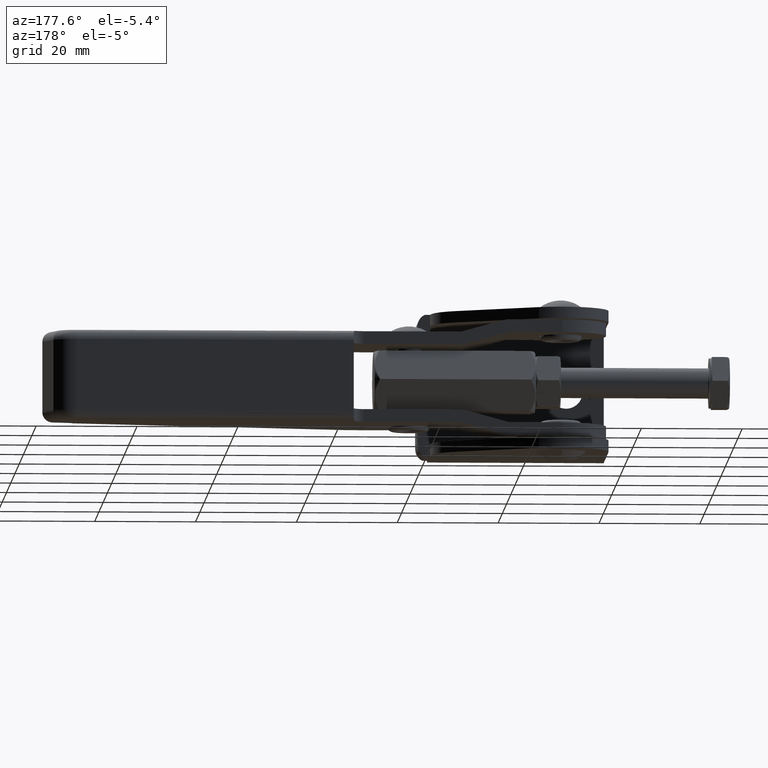
[diagram: clean part render]
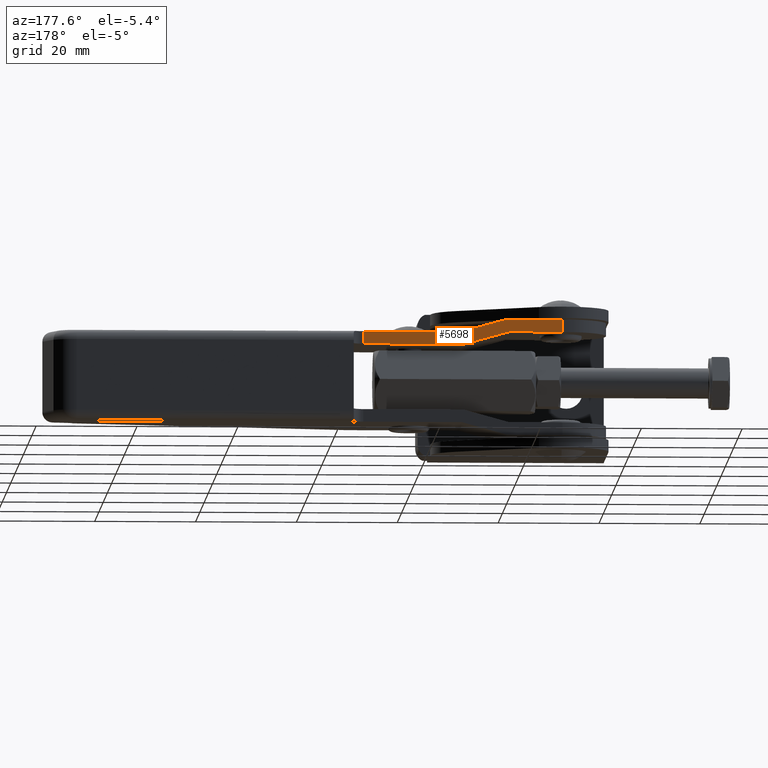
[diagram: same view with one face highlighted and labeled with its STEP entity id]
A machine part, auxiliary view. The second image highlights one B-rep face of the part: STEP entity #5698.
In plain terms, the highlighted planar face has unit normal (0, -1, 0).
Its self-contained STEP definition (entity closure, byte-faithful):
#373 = VERTEX_POINT ( 'NONE', #2114 ) ;
#421 = VECTOR ( 'NONE', #3467, 1000.000000000000000 ) ;
#581 = FACE_OUTER_BOUND ( 'NONE', #6100, .T. ) ;
#808 = VECTOR ( 'NONE', #6812, 1000.000000000000100 ) ;
#813 = CARTESIAN_POINT ( 'NONE',  ( -8.000000000000000000, 34.00000000000000000, 9.000000000000005300 ) ) ;
#966 = CARTESIAN_POINT ( 'NONE',  ( 11.65922915400000000, 34.00000000322666700, 6.500000000000004400 ) ) ;
#1069 = VECTOR ( 'NONE', #2229, 1000.000000000000000 ) ;
#1103 = VERTEX_POINT ( 'NONE', #2317 ) ;
#1141 = VECTOR ( 'NONE', #4653, 1000.000000000000000 ) ;
#1251 = PLANE ( 'NONE',  #4116 ) ;
#1756 = EDGE_CURVE ( 'NONE', #5498, #1103, #4007, .T. ) ;
#1790 = LINE ( 'NONE', #5171, #4555 ) ;
#1796 = DIRECTION ( 'NONE',  ( 0.0000000000000000000, 0.0000000000000000000, -1.000000000000000000 ) ) ;
#1891 = CARTESIAN_POINT ( 'NONE',  ( 7.159229154000003700, 34.00000000000000000, 7.750000000000004400 ) ) ;
#2077 = CARTESIAN_POINT ( 'NONE',  ( 31.49999999961530900, 34.00000000024999700, 9.000000000000005300 ) ) ;
#2114 = CARTESIAN_POINT ( 'NONE',  ( 31.49999999961530900, 34.00000000241999500, 6.500000000000004400 ) ) ;
#2229 = DIRECTION ( 'NONE',  ( 1.000000000000000000, 0.0000000000000000000, 0.0000000000000000000 ) ) ;
#2317 = CARTESIAN_POINT ( 'NONE',  ( 2.659229153999999300, 34.00000000000000000, 9.000000000000005300 ) ) ;
#2483 = ORIENTED_EDGE ( 'NONE', *, *, #6084, .F. ) ;
#2511 = CARTESIAN_POINT ( 'NONE',  ( -8.000000000000000000, 34.00000000000000000, 11.50000000000000400 ) ) ;
#2611 = LINE ( 'NONE', #5742, #1141 ) ;
#2667 = CARTESIAN_POINT ( 'NONE',  ( 2.999999999999999100, 33.99999999999998600, 11.50000000000000400 ) ) ;
#2708 = EDGE_CURVE ( 'NONE', #2746, #4954, #3556, .T. ) ;
#2746 = VERTEX_POINT ( 'NONE', #3775 ) ;
#3329 = LINE ( 'NONE', #6177, #421 ) ;
#3467 = DIRECTION ( 'NONE',  ( -1.000000000000000000, -0.0000000000000000000, -0.0000000000000000000 ) ) ;
#3535 = DIRECTION ( 'NONE',  ( -1.000000000000000000, -0.0000000000000000000, -0.0000000000000000000 ) ) ;
#3556 = LINE ( 'NONE', #2667, #4841 ) ;
#3602 = ORIENTED_EDGE ( 'NONE', *, *, #7060, .F. ) ;
#3716 = LINE ( 'NONE', #1891, #808 ) ;
#3775 = CARTESIAN_POINT ( 'NONE',  ( 11.99999999999999600, 34.00000000024999700, 9.000000000000005300 ) ) ;
#3855 = CARTESIAN_POINT ( 'NONE',  ( 11.75000000000000000, 34.00000000000000000, 9.000000000000005300 ) ) ;
#4007 = LINE ( 'NONE', #3855, #1069 ) ;
#4104 = DIRECTION ( 'NONE',  ( 0.0000000000000000000, 0.0000000000000000000, -1.000000000000000000 ) ) ;
#4114 = CARTESIAN_POINT ( 'NONE',  ( 2.999999999999988900, 33.99999999999999300, 11.50000000000000500 ) ) ;
#4116 = AXIS2_PLACEMENT_3D ( 'NONE', #6167, #5098, #1796 ) ;
#4555 = VECTOR ( 'NONE', #3535, 1000.000000000000000 ) ;
#4651 = ORIENTED_EDGE ( 'NONE', *, *, #5104, .F. ) ;
#4653 = DIRECTION ( 'NONE',  ( 0.0000000000000000000, 0.0000000000000000000, 1.000000000000000000 ) ) ;
#4778 = CARTESIAN_POINT ( 'NONE',  ( 52.24644730450000900, 34.00000000050000200, 9.000000000000005300 ) ) ;
#4841 = VECTOR ( 'NONE', #5895, 1000.000000000000100 ) ;
#4892 = CARTESIAN_POINT ( 'NONE',  ( -8.000000000000000000, 34.00000000000000000, 9.000000000000005300 ) ) ;
#4931 = EDGE_CURVE ( 'NONE', #373, #6875, #1790, .T. ) ;
#4954 = VERTEX_POINT ( 'NONE', #4114 ) ;
#4962 = VECTOR ( 'NONE', #6981, 1000.000000000000000 ) ;
#5098 = DIRECTION ( 'NONE',  ( 0.0000000000000000000, -1.000000000000000000, 0.0000000000000000000 ) ) ;
#5104 = EDGE_CURVE ( 'NONE', #6886, #2746, #6424, .T. ) ;
#5151 = EDGE_CURVE ( 'NONE', #4954, #5299, #3329, .T. ) ;
#5171 = CARTESIAN_POINT ( 'NONE',  ( 51.82719602000000900, 34.00000000483999700, 6.500000000000004400 ) ) ;
#5299 = VERTEX_POINT ( 'NONE', #2511 ) ;
#5462 = ORIENTED_EDGE ( 'NONE', *, *, #4931, .T. ) ;
#5498 = VERTEX_POINT ( 'NONE', #4892 ) ;
#5678 = ORIENTED_EDGE ( 'NONE', *, *, #1756, .F. ) ;
#5698 = ADVANCED_FACE ( 'NONE', ( #581 ), #1251, .F. ) ;
#5742 = CARTESIAN_POINT ( 'NONE',  ( 31.49999999923061700, 34.00000000000000000, 7.750000000000004400 ) ) ;
#5811 = LINE ( 'NONE', #813, #6759 ) ;
#5895 = DIRECTION ( 'NONE',  ( -0.9635179096299406600, -0.0000000000000000000, 0.2676438637860945000 ) ) ;
#6084 = EDGE_CURVE ( 'NONE', #5299, #5498, #5811, .T. ) ;
#6100 = EDGE_LOOP ( 'NONE', ( #3602, #5462, #6376, #5678, #2483, #6841, #7090, #4651 ) ) ;
#6167 = CARTESIAN_POINT ( 'NONE',  ( -8.000000000000000000, 34.00000000000000000, 11.50000000000000400 ) ) ;
#6177 = CARTESIAN_POINT ( 'NONE',  ( 11.75000000000000000, 34.00000000000000000, 11.50000000000000400 ) ) ;
#6376 = ORIENTED_EDGE ( 'NONE', *, *, #6701, .T. ) ;
#6424 = LINE ( 'NONE', #4778, #4962 ) ;
#6701 = EDGE_CURVE ( 'NONE', #6875, #1103, #3716, .T. ) ;
#6759 = VECTOR ( 'NONE', #4104, 1000.000000000000000 ) ;
#6812 = DIRECTION ( 'NONE',  ( -0.9635179096299406600, -0.0000000000000000000, 0.2676438637860947300 ) ) ;
#6841 = ORIENTED_EDGE ( 'NONE', *, *, #5151, .F. ) ;
#6875 = VERTEX_POINT ( 'NONE', #966 ) ;
#6886 = VERTEX_POINT ( 'NONE', #2077 ) ;
#6981 = DIRECTION ( 'NONE',  ( -1.000000000000000000, -0.0000000000000000000, -0.0000000000000000000 ) ) ;
#7060 = EDGE_CURVE ( 'NONE', #373, #6886, #2611, .T. ) ;
#7090 = ORIENTED_EDGE ( 'NONE', *, *, #2708, .F. ) ;